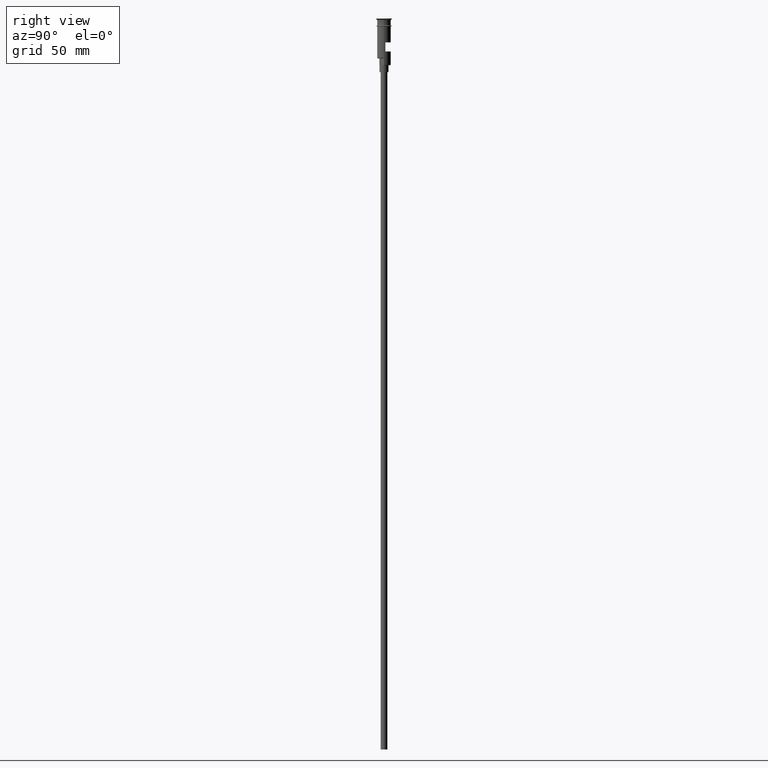
[diagram: clean part render]
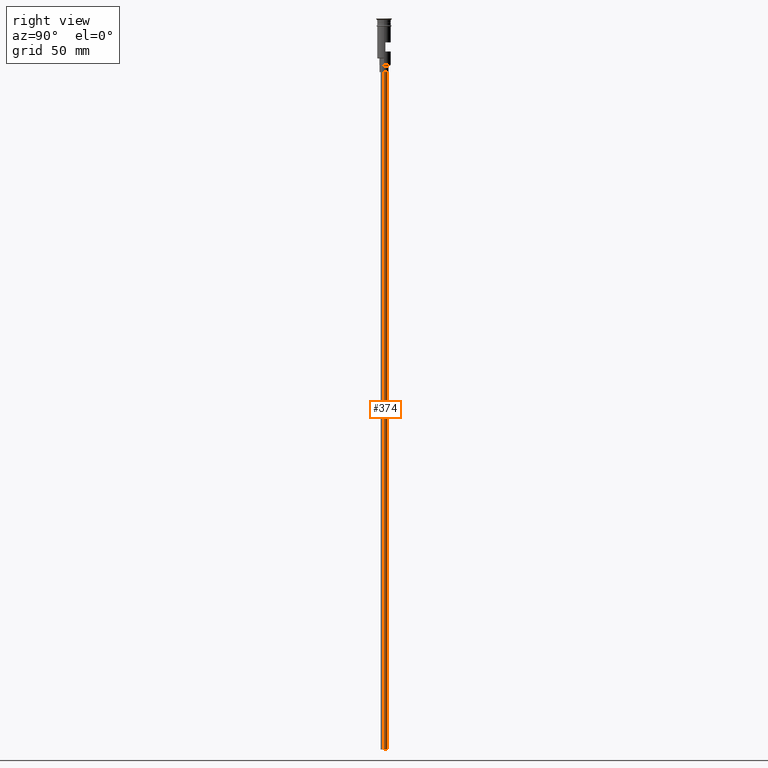
[diagram: same view with one face highlighted and labeled with its STEP entity id]
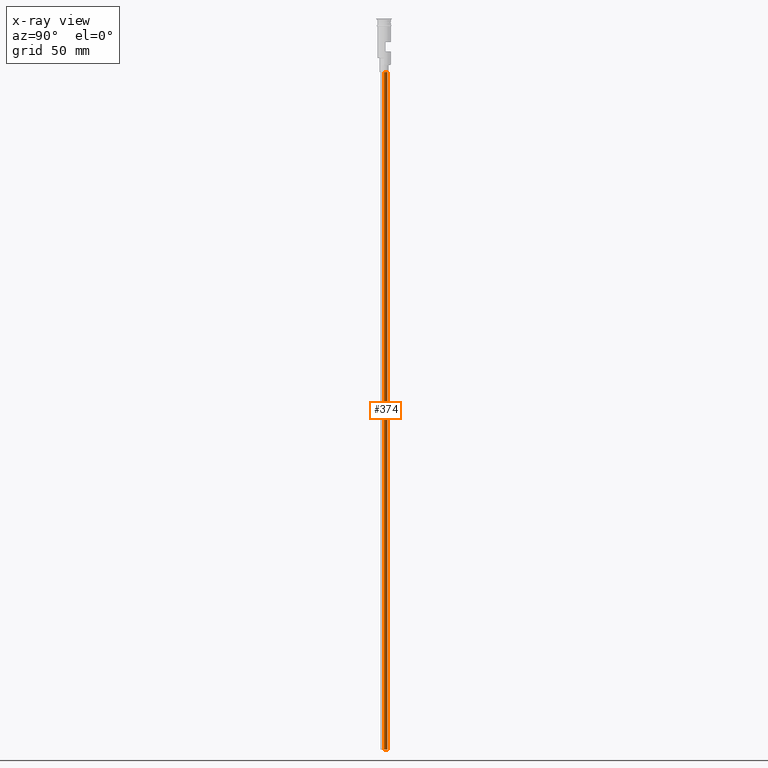
[diagram: x-ray of the same camera — body ghosted, the highlighted face saturated]
A machine part, right view. The second image highlights one B-rep face of the part: STEP entity #374.
The next image is the same camera in x-ray: the body ghosted, the highlighted face saturated — about 0% of this face is hidden behind the body in this view.
In plain terms, the highlighted cylindrical surface (edge-blend (fillet) strip) has radius 1.5 mm, axis along (-0, -0, 1).
Its self-contained STEP definition (entity closure, byte-faithful):
#36 = DIRECTION ( 'NONE',  ( 1.000000000000000000, 0.000000000000000000, 0.000000000000000000 ) ) ;
#58 = CYLINDRICAL_SURFACE ( 'NONE', #1250, 1.500000000000000222 ) ;
#68 = VERTEX_POINT ( 'NONE', #585 ) ;
#79 = DIRECTION ( 'NONE',  ( -0.000000000000000000, -0.000000000000000000, 1.000000000000000000 ) ) ;
#129 = CARTESIAN_POINT ( 'NONE',  ( 1.500000000000000222, 0.000000000000000000, -320.5000000000000000 ) ) ;
#131 = CARTESIAN_POINT ( 'NONE',  ( -1.500000000000000222, 1.836970198721030181E-16, -320.5000000000000000 ) ) ;
#148 = DIRECTION ( 'NONE',  ( 0.000000000000000000, 0.000000000000000000, -1.000000000000000000 ) ) ;
#213 = EDGE_LOOP ( 'NONE', ( #378, #863, #1110, #1391 ) ) ;
#265 = DIRECTION ( 'NONE',  ( 0.000000000000000000, 0.000000000000000000, -1.000000000000000000 ) ) ;
#349 = VERTEX_POINT ( 'NONE', #1520 ) ;
#374 = ADVANCED_FACE ( 'NONE', ( #553 ), #58, .T. ) ;
#378 = ORIENTED_EDGE ( 'NONE', *, *, #593, .F. ) ;
#473 = LINE ( 'NONE', #131, #999 ) ;
#512 = DIRECTION ( 'NONE',  ( -1.000000000000000000, 0.000000000000000000, 0.000000000000000000 ) ) ;
#541 = AXIS2_PLACEMENT_3D ( 'NONE', #1093, #265, #512 ) ;
#553 = FACE_OUTER_BOUND ( 'NONE', #213, .T. ) ;
#562 = VERTEX_POINT ( 'NONE', #592 ) ;
#585 = CARTESIAN_POINT ( 'NONE',  ( -1.500000000000000222, 1.836970198721030181E-16, -23.50000000000000000 ) ) ;
#592 = CARTESIAN_POINT ( 'NONE',  ( -1.500000000000000222, 1.836970198721030181E-16, -320.5000000000000000 ) ) ;
#593 = EDGE_CURVE ( 'NONE', #562, #1048, #1251, .T. ) ;
#610 = EDGE_CURVE ( 'NONE', #68, #349, #1460, .T. ) ;
#760 = CARTESIAN_POINT ( 'NONE',  ( 1.500000000000000222, 0.000000000000000000, -320.5000000000000000 ) ) ;
#863 = ORIENTED_EDGE ( 'NONE', *, *, #915, .T. ) ;
#915 = EDGE_CURVE ( 'NONE', #562, #68, #473, .T. ) ;
#927 = CARTESIAN_POINT ( 'NONE',  ( 0.000000000000000000, 0.000000000000000000, -320.5000000000000000 ) ) ;
#990 = DIRECTION ( 'NONE',  ( -1.000000000000000000, 0.000000000000000000, 0.000000000000000000 ) ) ;
#999 = VECTOR ( 'NONE', #79, 1000.000000000000000 ) ;
#1016 = AXIS2_PLACEMENT_3D ( 'NONE', #1109, #148, #990 ) ;
#1048 = VERTEX_POINT ( 'NONE', #760 ) ;
#1093 = CARTESIAN_POINT ( 'NONE',  ( 0.000000000000000000, 0.000000000000000000, -320.5000000000000000 ) ) ;
#1109 = CARTESIAN_POINT ( 'NONE',  ( 0.000000000000000000, 0.000000000000000000, -23.50000000000000000 ) ) ;
#1110 = ORIENTED_EDGE ( 'NONE', *, *, #610, .T. ) ;
#1250 = AXIS2_PLACEMENT_3D ( 'NONE', #927, #1413, #36 ) ;
#1251 = CIRCLE ( 'NONE', #541, 1.500000000000000222 ) ;
#1347 = EDGE_CURVE ( 'NONE', #1048, #349, #1443, .T. ) ;
#1382 = VECTOR ( 'NONE', #1457, 1000.000000000000000 ) ;
#1391 = ORIENTED_EDGE ( 'NONE', *, *, #1347, .F. ) ;
#1413 = DIRECTION ( 'NONE',  ( -0.000000000000000000, -0.000000000000000000, 1.000000000000000000 ) ) ;
#1443 = LINE ( 'NONE', #129, #1382 ) ;
#1457 = DIRECTION ( 'NONE',  ( -0.000000000000000000, -0.000000000000000000, 1.000000000000000000 ) ) ;
#1460 = CIRCLE ( 'NONE', #1016, 1.500000000000000222 ) ;
#1520 = CARTESIAN_POINT ( 'NONE',  ( 1.500000000000000222, 0.000000000000000000, -23.50000000000000000 ) ) ;